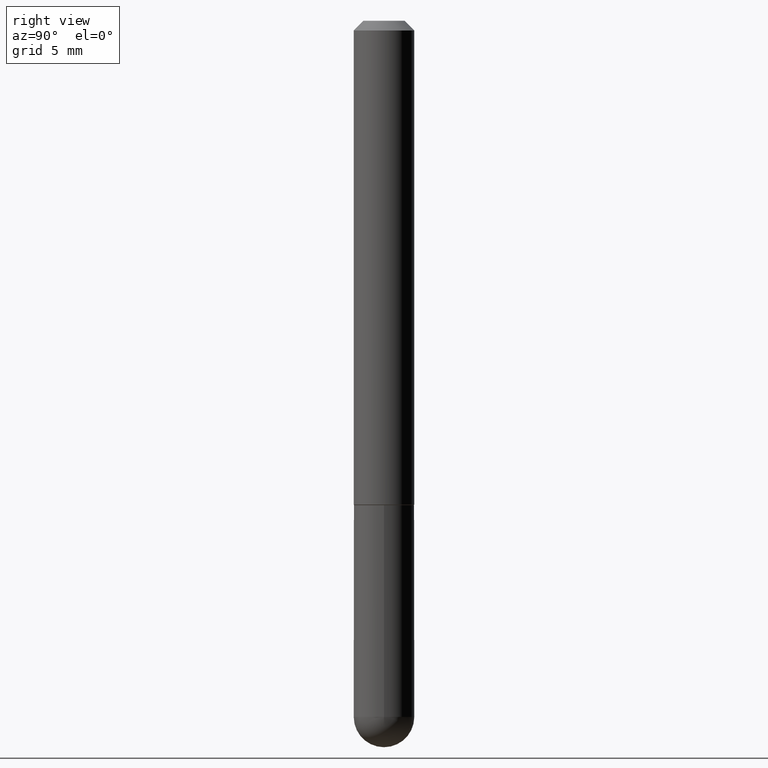
[diagram: clean part render]
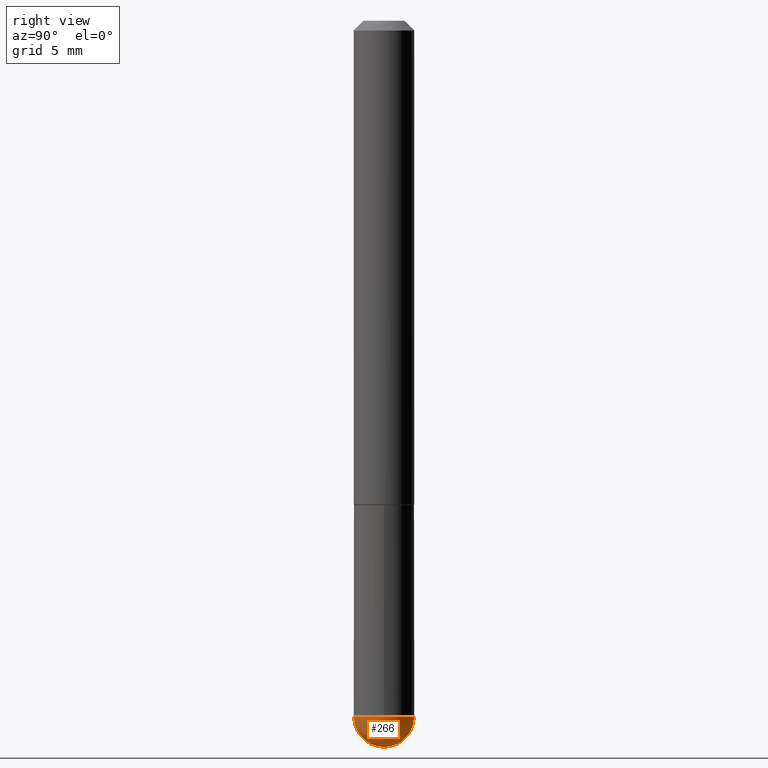
[diagram: same view with one face highlighted and labeled with its STEP entity id]
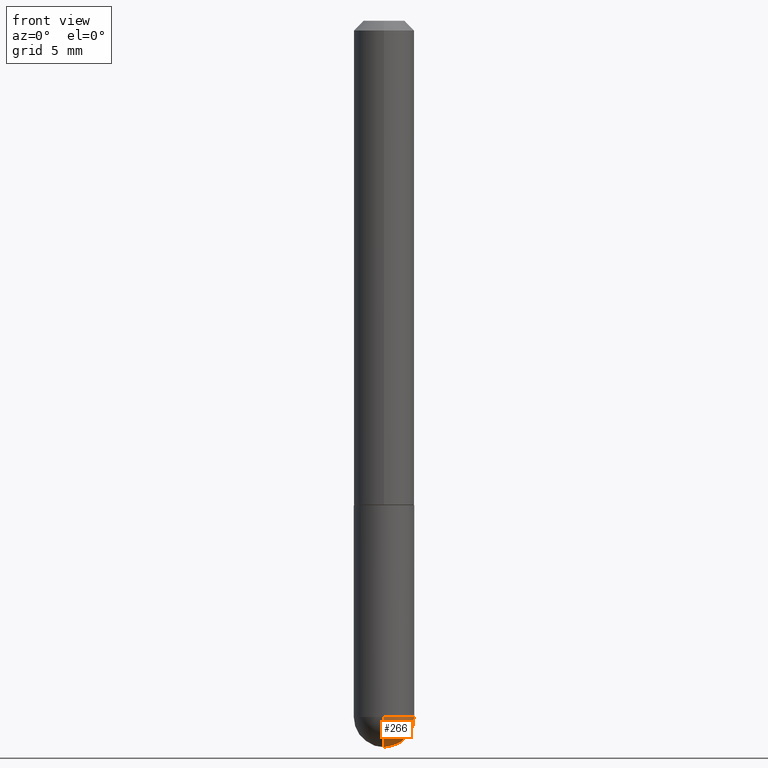
[diagram: same view with one face highlighted and labeled with its STEP entity id]
A machine part, right view. The second image highlights one B-rep face of the part: STEP entity #266.
A second angle (front view) of the same face is appended — the face is thin or edge-on in the first view.
In plain terms, the highlighted spherical surface has radius 1.5875 mm.
Its self-contained STEP definition (entity closure, byte-faithful):
#4 = DIRECTION ( 'NONE',  ( -2.445468806185136597E-29, 3.491481338843145583E-15, 1.000000000000000000 ) ) ;
#19 = CARTESIAN_POINT ( 'NONE',  ( 3.184241630977247611E-29, -5.493186792727071849E-15, -1.437500000000000000 ) ) ;
#25 = EDGE_CURVE ( 'NONE', #254, #68, #376, .T. ) ;
#31 = EDGE_CURVE ( 'NONE', #396, #68, #162, .T. ) ;
#54 = DIRECTION ( 'NONE',  ( -1.000000000000000000, 7.105427357601001070E-15, -4.926315508542082329E-29 ) ) ;
#66 = DIRECTION ( 'NONE',  ( -1.000000000000000000, 6.982962677686265922E-15, -4.883557194083112340E-29 ) ) ;
#68 = VERTEX_POINT ( 'NONE', #89 ) ;
#77 = CARTESIAN_POINT ( 'NONE',  ( 0.06249999999999995143, -4.691678049070475040E-15, -1.437500000000000222 ) ) ;
#89 = CARTESIAN_POINT ( 'NONE',  ( 4.364351673554256397E-16, 0.06249999999999480971, -1.437500000000000444 ) ) ;
#90 = DIRECTION ( 'NONE',  ( 1.000000000000000000, -6.982962677686265922E-15, 4.883557194083112340E-29 ) ) ;
#105 = ORIENTED_EDGE ( 'NONE', *, *, #31, .F. ) ;
#108 = ORIENTED_EDGE ( 'NONE', *, *, #25, .T. ) ;
#125 = DIRECTION ( 'NONE',  ( 1.000000000000000000, -6.982962677686268288E-15, 0.000000000000000000 ) ) ;
#127 = AXIS2_PLACEMENT_3D ( 'NONE', #244, #66, #212 ) ;
#128 = EDGE_CURVE ( 'NONE', #254, #373, #191, .T. ) ;
#139 = DIRECTION ( 'NONE',  ( -7.105427357601001859E-15, -1.000000000000000000, 0.000000000000000000 ) ) ;
#159 = ORIENTED_EDGE ( 'NONE', *, *, #128, .F. ) ;
#162 = CIRCLE ( 'NONE', #217, 0.06249999999999995143 ) ;
#170 = DIRECTION ( 'NONE',  ( -2.445468806185136597E-29, 3.491481338843145583E-15, 1.000000000000000000 ) ) ;
#191 = CIRCLE ( 'NONE', #313, 0.06250000000000018041 ) ;
#201 = DIRECTION ( 'NONE',  ( 6.982962677686266711E-15, 1.000000000000000000, 0.000000000000000000 ) ) ;
#212 = DIRECTION ( 'NONE',  ( 6.982962677686265922E-15, 1.000000000000000000, -4.370956789862807739E-15 ) ) ;
#217 = AXIS2_PLACEMENT_3D ( 'NONE', #232, #170, #307 ) ;
#227 = CIRCLE ( 'NONE', #314, 0.06249999999999995143 ) ;
#232 = CARTESIAN_POINT ( 'NONE',  ( 3.515361408891134418E-29, -5.019004424587023131E-15, -1.437500000000000222 ) ) ;
#239 = CARTESIAN_POINT ( 'NONE',  ( 3.184241630977247611E-29, -5.493186792727071849E-15, -1.437500000000000000 ) ) ;
#244 = CARTESIAN_POINT ( 'NONE',  ( 3.184241630977247611E-29, -5.493186792727071849E-15, -1.437500000000000000 ) ) ;
#254 = VERTEX_POINT ( 'NONE', #315 ) ;
#266 = ADVANCED_FACE ( 'NONE', ( #279 ), #375, .T. ) ;
#279 = FACE_OUTER_BOUND ( 'NONE', #386, .T. ) ;
#286 = CARTESIAN_POINT ( 'NONE',  ( 3.515361408891134418E-29, -5.019004424587023131E-15, -1.437500000000000222 ) ) ;
#307 = DIRECTION ( 'NONE',  ( 1.000000000000000000, -6.982962677686268288E-15, 0.000000000000000000 ) ) ;
#313 = AXIS2_PLACEMENT_3D ( 'NONE', #19, #54, #139 ) ;
#314 = AXIS2_PLACEMENT_3D ( 'NONE', #286, #4, #125 ) ;
#315 = CARTESIAN_POINT ( 'NONE',  ( 3.339755826017505008E-29, -5.707577355157432999E-15, -1.500000000000000222 ) ) ;
#318 = EDGE_CURVE ( 'NONE', #373, #396, #227, .T. ) ;
#361 = ORIENTED_EDGE ( 'NONE', *, *, #318, .F. ) ;
#373 = VERTEX_POINT ( 'NONE', #389 ) ;
#375 = SPHERICAL_SURFACE ( 'NONE', #127, 0.06250000000000018041 ) ;
#376 = CIRCLE ( 'NONE', #383, 0.06250000000000018041 ) ;
#383 = AXIS2_PLACEMENT_3D ( 'NONE', #239, #90, #201 ) ;
#386 = EDGE_LOOP ( 'NONE', ( #159, #108, #105, #361 ) ) ;
#389 = CARTESIAN_POINT ( 'NONE',  ( -4.440892098500294840E-16, -0.06250000000000532907, -1.437500000000000000 ) ) ;
#396 = VERTEX_POINT ( 'NONE', #77 ) ;